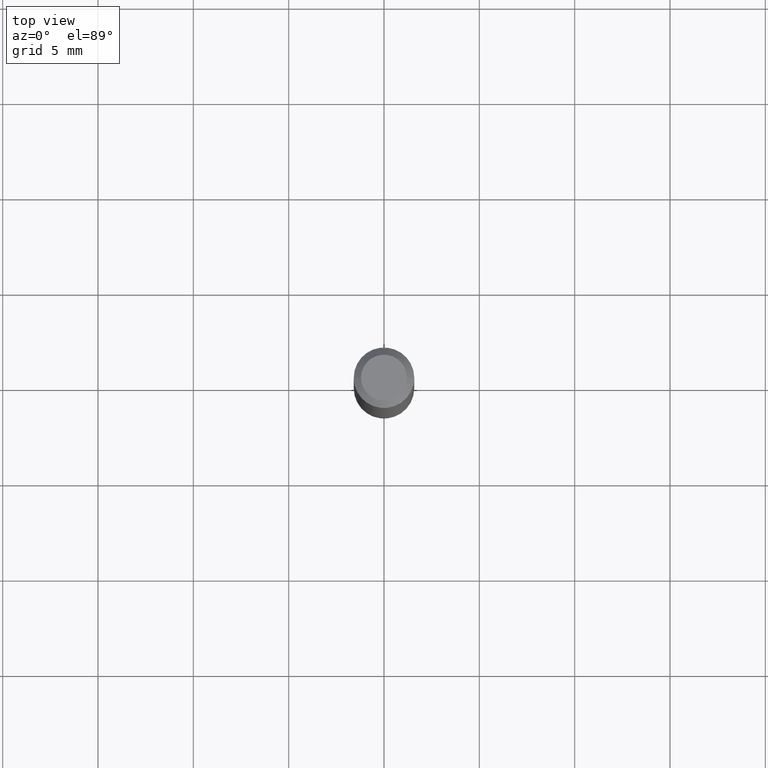
[diagram: clean part render]
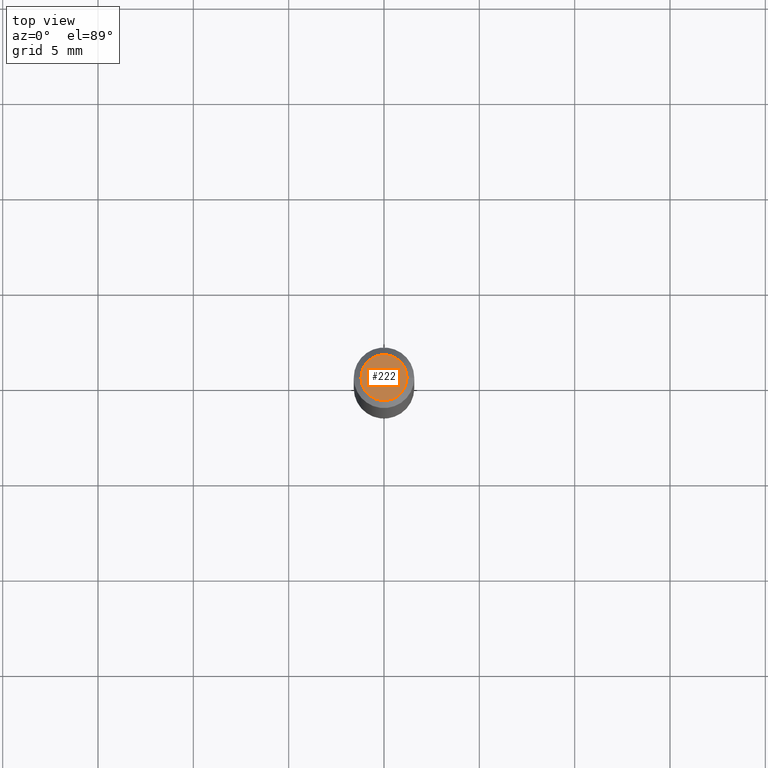
[diagram: same view with one face highlighted and labeled with its STEP entity id]
A machine part, top view. The second image highlights one B-rep face of the part: STEP entity #222.
In plain terms, the highlighted planar face has unit normal (0, -0, -1).
Its self-contained STEP definition (entity closure, byte-faithful):
#21 = VERTEX_POINT ( 'NONE', #191 ) ;
#30 = CARTESIAN_POINT ( 'NONE',  ( -8.051188380117617343E-45, 1.149496322079166104E-30, 3.292288316969884985E-16 ) ) ;
#41 = EDGE_LOOP ( 'NONE', ( #235, #460 ) ) ;
#55 = DIRECTION ( 'NONE',  ( 1.000000000000000000, -6.982962677686267499E-15, 4.852736867747366768E-29 ) ) ;
#94 = VERTEX_POINT ( 'NONE', #127 ) ;
#95 = DIRECTION ( 'NONE',  ( 2.438088387897960049E-29, -3.491481338843145188E-15, -1.000000000000000000 ) ) ;
#99 = CARTESIAN_POINT ( 'NONE',  ( 3.316907271900976096E-16, 0.04749999999999999362, -1.230947746555162994E-18 ) ) ;
#127 = CARTESIAN_POINT ( 'NONE',  ( -0.04749999999999999362, 3.578768372314216422E-16, 3.292288316969860333E-16 ) ) ;
#131 = CIRCLE ( 'NONE', #212, 0.04749999999999999362 ) ;
#162 = EDGE_CURVE ( 'NONE', #21, #94, #131, .T. ) ;
#167 = DIRECTION ( 'NONE',  ( -2.445468806185136597E-29, 3.491481338843145583E-15, 1.000000000000000000 ) ) ;
#177 = PLANE ( 'NONE',  #267 ) ;
#191 = CARTESIAN_POINT ( 'NONE',  ( 0.04749999999999999362, -4.035134999187572707E-16, 3.292288316969910130E-16 ) ) ;
#194 = EDGE_CURVE ( 'NONE', #94, #21, #204, .T. ) ;
#204 = CIRCLE ( 'NONE', #462, 0.04749999999999999362 ) ;
#210 = DIRECTION ( 'NONE',  ( -1.000000000000000000, 6.982962677686265922E-15, -4.876176775795935793E-29 ) ) ;
#212 = AXIS2_PLACEMENT_3D ( 'NONE', #348, #167, #55 ) ;
#222 = ADVANCED_FACE ( 'NONE', ( #429 ), #177, .F. ) ;
#235 = ORIENTED_EDGE ( 'NONE', *, *, #194, .T. ) ;
#267 = AXIS2_PLACEMENT_3D ( 'NONE', #99, #95, #210 ) ;
#348 = CARTESIAN_POINT ( 'NONE',  ( -8.051188380117617343E-45, 1.149496322079166104E-30, 3.292288316969884985E-16 ) ) ;
#429 = FACE_OUTER_BOUND ( 'NONE', #41, .T. ) ;
#459 = DIRECTION ( 'NONE',  ( -2.445468806185136597E-29, 3.491481338843145583E-15, 1.000000000000000000 ) ) ;
#460 = ORIENTED_EDGE ( 'NONE', *, *, #162, .T. ) ;
#461 = DIRECTION ( 'NONE',  ( 1.000000000000000000, -6.982962677686267499E-15, 4.852736867747366768E-29 ) ) ;
#462 = AXIS2_PLACEMENT_3D ( 'NONE', #30, #459, #461 ) ;